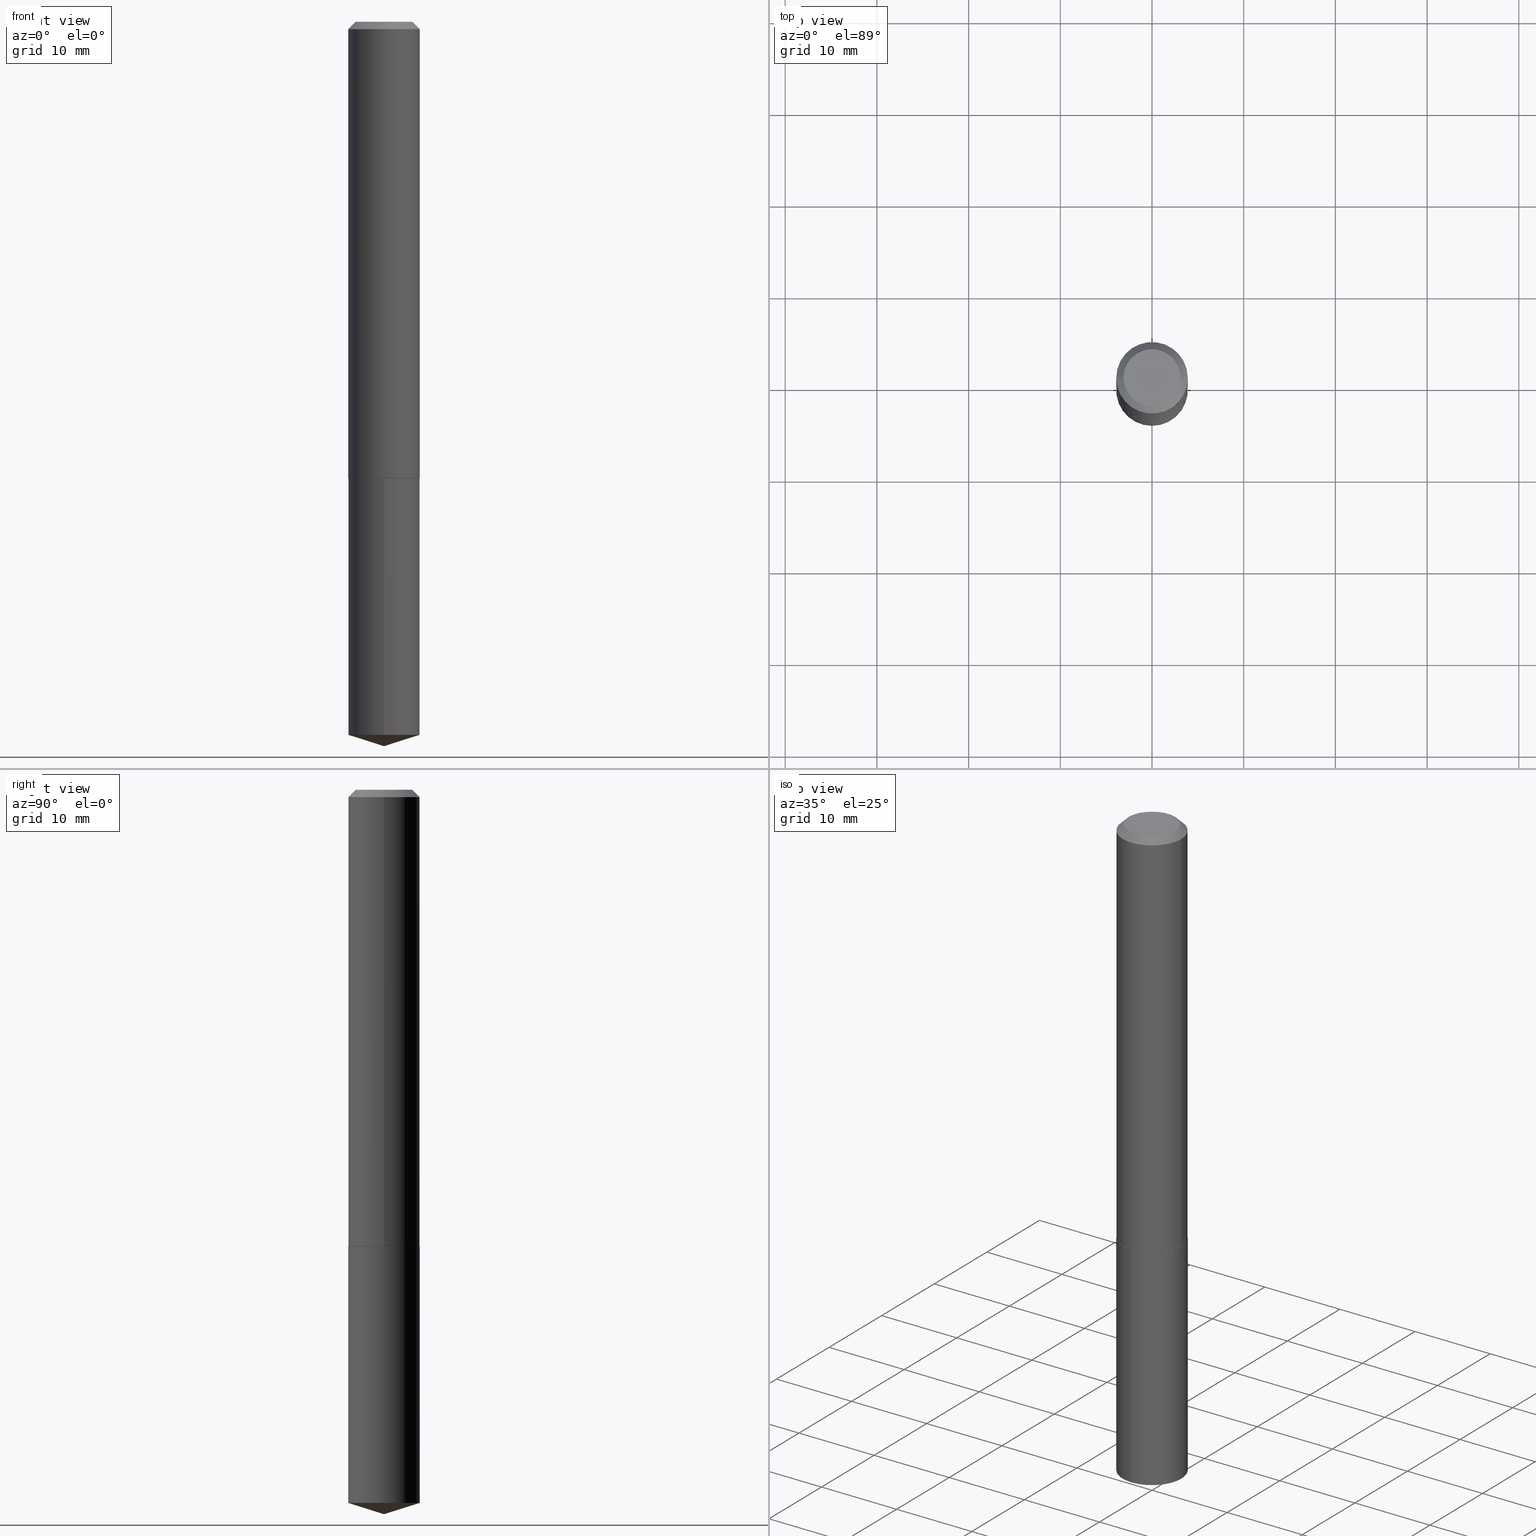
[diagram: canonical four-view strip — front | top / right | iso, engineering-drawing reading convention]
A machine part, canonical four-view strip (front | top / right | iso — engineering-drawing reading convention). The complete STEP part file that produces these views, byte-faithful:
ISO-10303-21;
HEADER;
FILE_DESCRIPTION (( 'STEP AP203' ),
    '1' );
FILE_NAME ('62146.STEP',
    '2024-04-23T06:43:20',
    ( '' ),
    ( '' ),
    'SwSTEP 2.0',
    'SolidWorks 2023',
    '' );
FILE_SCHEMA (( 'CONFIG_CONTROL_DESIGN' ));
ENDSEC;

DATA;
#1 = AXIS2_PLACEMENT_3D ( 'NONE', #253, #371, #138 ) ;
#2 = DIRECTION ( 'NONE',  ( -2.445468806185136597E-29, 3.491481338843145583E-15, 1.000000000000000000 ) ) ;
#3 = DIRECTION ( 'NONE',  ( -2.445604235534817824E-29, 3.491287396306242088E-15, 1.000000000000000000 ) ) ;
#4 = EDGE_CURVE ( 'NONE', #285, #129, #298, .T. ) ;
#5 = CARTESIAN_POINT ( 'NONE',  ( 7.487650971556116702E-29, -1.068995466523567618E-14, -3.061785870967631773 ) ) ;
#6 = VECTOR ( 'NONE', #382, 39.37007874015748143 ) ;
#7 = AXIS2_PLACEMENT_3D ( 'NONE', #148, #147, #380 ) ;
#8 = CARTESIAN_POINT ( 'NONE',  ( -0.1535500000000002419, -5.752614201506813710E-15, -1.960099999999999953 ) ) ;
#9 = VERTEX_POINT ( 'NONE', #154 ) ;
#10 = CARTESIAN_POINT ( 'NONE',  ( 4.793363407003486357E-29, -6.843652572266448870E-15, -1.960099999999999953 ) ) ;
#11 = ADVANCED_FACE ( 'NONE', ( #241 ), #142, .T. ) ;
#12 = EDGE_LOOP ( 'NONE', ( #224, #178, #44 ) ) ;
#13 = APPROVAL ( #97, 'UNSPECIFIED' ) ;
#14 = CLOSED_SHELL ( 'NONE', ( #11, #87, #180, #80, #182, #266, #117, #279 ) ) ;
#15 = DIRECTION ( 'NONE',  ( 2.445604235534817544E-29, -3.491287396306242088E-15, -1.000000000000000000 ) ) ;
#16 = APPROVAL_PERSON_ORGANIZATION ( #381, #19, #128 ) ;
#17 = DIRECTION ( 'NONE',  ( -2.445468806185136597E-29, 3.491481338843145583E-15, 1.000000000000000000 ) ) ;
#18 = VECTOR ( 'NONE', #70, 39.37007874015748143 ) ;
#19 = APPROVAL ( #28, 'UNSPECIFIED' ) ;
#20 = CARTESIAN_POINT ( 'NONE',  ( 4.794586141406578598E-29, -6.845398312935870373E-15, -1.960599999999999898 ) ) ;
#21 = ORIENTED_EDGE ( 'NONE', *, *, #383, .T. ) ;
#22 = ADVANCED_FACE ( 'NONE', ( #60 ), #323, .T. ) ;
#23 = DIRECTION ( 'NONE',  ( -6.982962677686266711E-15, -1.000000000000000000, 3.558252026915354491E-15 ) ) ;
#24 = AXIS2_PLACEMENT_3D ( 'NONE', #169, #37, #134 ) ;
#25 = DIRECTION ( 'NONE',  ( -2.438088387897960049E-29, 3.491481338843145188E-15, 1.000000000000000000 ) ) ;
#26 = AXIS2_PLACEMENT_3D ( 'NONE', #217, #25, #215 ) ;
#27 = ORIENTED_EDGE ( 'NONE', *, *, #193, .T. ) ;
#28 = APPROVAL_STATUS ( 'not_yet_approved' ) ;
#29 = VERTEX_POINT ( 'NONE', #272 ) ;
#30 = CALENDAR_DATE ( 2024, 23, 4 ) ;
#31 = CC_DESIGN_PERSON_AND_ORGANIZATION_ASSIGNMENT ( #56, #329, ( #365 ) ) ;
#32 = DIRECTION ( 'NONE',  ( -1.000000000000000000, 6.982962677686266711E-15, 0.000000000000000000 ) ) ;
#33 = DIRECTION ( 'NONE',  ( -2.445604235534817824E-29, 3.491287396306242088E-15, 1.000000000000000000 ) ) ;
#34 = APPROVAL_PERSON_ORGANIZATION ( #122, #13, #301 ) ;
#35 = DIRECTION ( 'NONE',  ( 6.776566513254247093E-15, 0.9537169507482274877, 0.3007057995042716203 ) ) ;
#36 = DIRECTION ( 'NONE',  ( -1.000000000000000000, 6.982962677686265922E-15, -4.876176775795935793E-29 ) ) ;
#37 = DIRECTION ( 'NONE',  ( -2.445468806185136597E-29, 3.491481338843145583E-15, 1.000000000000000000 ) ) ;
#38 = EDGE_LOOP ( 'NONE', ( #238, #143, #183, #167 ) ) ;
#39 = AXIS2_PLACEMENT_3D ( 'NONE', #234, #15, #290 ) ;
#40 = FACE_OUTER_BOUND ( 'NONE', #137, .T. ) ;
#41 = AXIS2_PLACEMENT_3D ( 'NONE', #109, #2, #225 ) ;
#42 = PERSON_AND_ORGANIZATION ( #78, #328 ) ;
#43 = CC_DESIGN_DATE_AND_TIME_ASSIGNMENT ( #356, #319, ( #73 ) ) ;
#44 = ORIENTED_EDGE ( 'NONE', *, *, #102, .F. ) ;
#45 = DIRECTION ( 'NONE',  ( -6.982962677686265922E-15, -1.000000000000000000, 3.500519750498761230E-15 ) ) ;
#46 = AXIS2_PLACEMENT_3D ( 'NONE', #94, #390, #98 ) ;
#47 = CARTESIAN_POINT ( 'NONE',  ( 7.606318293360390624E-29, -1.085860205999167574E-14, -3.110199999999999854 ) ) ;
#48 = UNCERTAINTY_MEASURE_WITH_UNIT (LENGTH_MEASURE( 1.000000000000000082E-05 ), #207, 'distance_accuracy_value', 'NONE');
#49 =( NAMED_UNIT ( * ) PLANE_ANGLE_UNIT ( ) SI_UNIT ( $, .RADIAN. ) );
#50 = ORIENTED_EDGE ( 'NONE', *, *, #315, .F. ) ;
#51 = PERSON_AND_ORGANIZATION_ROLE ( 'classification_officer' ) ;
#52 = EDGE_CURVE ( 'NONE', #135, #187, #246, .T. ) ;
#53 = ORIENTED_EDGE ( 'NONE', *, *, #289, .T. ) ;
#54 = APPROVAL_PERSON_ORGANIZATION ( #171, #291, #260 ) ;
#55 = APPLICATION_CONTEXT ( 'configuration controlled 3d designs of mechanical parts and assemblies' ) ;
#56 = PERSON_AND_ORGANIZATION ( #78, #328 ) ;
#57 = ORIENTED_EDGE ( 'NONE', *, *, #372, .F. ) ;
#58 = DIRECTION ( 'NONE',  ( -6.982962677686266711E-15, -1.000000000000000000, 3.558252026915354491E-15 ) ) ;
#59 = VECTOR ( 'NONE', #133, 39.37007874015748143 ) ;
#60 = FACE_OUTER_BOUND ( 'NONE', #231, .T. ) ;
#61 = CIRCLE ( 'NONE', #343, 0.1535499999999999921 ) ;
#62 = DIRECTION ( 'NONE',  ( 1.000000000000000000, -6.982962677686270655E-15, 0.000000000000000000 ) ) ;
#63 = EDGE_LOOP ( 'NONE', ( #170, #310, #341, #373 ) ) ;
#64 = DIRECTION ( 'NONE',  ( 1.000000000000000000, -6.982962677686270655E-15, 0.000000000000000000 ) ) ;
#65 = ADVANCED_FACE ( 'NONE', ( #248 ), #359, .T. ) ;
#66 =( GEOMETRIC_REPRESENTATION_CONTEXT ( 3 ) GLOBAL_UNCERTAINTY_ASSIGNED_CONTEXT ( ( #48 ) ) GLOBAL_UNIT_ASSIGNED_CONTEXT ( ( #207, #49, #176 ) ) REPRESENTATION_CONTEXT ( 'NONE', 'WORKASPACE' ) );
#67 = DIRECTION ( 'NONE',  ( 1.000000000000000000, -6.982962677686270655E-15, 0.000000000000000000 ) ) ;
#68 = DIRECTION ( 'NONE',  ( -2.445468806185136597E-29, 3.491481338843145583E-15, 1.000000000000000000 ) ) ;
#69 = ORIENTED_EDGE ( 'NONE', *, *, #104, .F. ) ;
#70 = DIRECTION ( 'NONE',  ( -0.7071067811864871766, 7.493145998870136435E-15, 0.7071067811866078578 ) ) ;
#71 = ORIENTED_EDGE ( 'NONE', *, *, #159, .F. ) ;
#72 = MANIFOLD_SOLID_BREP ( 'Body-Move/Copy2[2]', #14 ) ;
#73 = PRODUCT_DEFINITION ( 'UNKNOWN', '', #365, #368 ) ;
#74 = CIRCLE ( 'NONE', #312, 0.1222999999999999782 ) ;
#75 = DIRECTION ( 'NONE',  ( -1.000000000000000000, 6.982962677686266711E-15, 0.000000000000000000 ) ) ;
#76 = EDGE_LOOP ( 'NONE', ( #316, #296, #111 ) ) ;
#77 = ORIENTED_EDGE ( 'NONE', *, *, #199, .F. ) ;
#78 = PERSON ( 'UNSPECIFIED', 'UNSPECIFIED', 'UNSPECIFIED', ('UNSPECIFIED'), ('UNSPECIFIED'), ('UNSPECIFIED') ) ;
#79 = CARTESIAN_POINT ( 'NONE',  ( -0.1530500000000004357, -5.755263428680924122E-15, -1.960599999999999898 ) ) ;
#80 = ADVANCED_FACE ( 'NONE', ( #331 ), #387, .F. ) ;
#81 = EDGE_CURVE ( 'NONE', #187, #345, #270, .T. ) ;
#82 = AXIS2_PLACEMENT_3D ( 'NONE', #126, #325, #58 ) ;
#83 = AXIS2_PLACEMENT_3D ( 'NONE', #256, #369, #64 ) ;
#84 = DIRECTION ( 'NONE',  ( 1.000000000000000000, -6.982962677686266711E-15, 4.876172253785905870E-29 ) ) ;
#85 = VECTOR ( 'NONE', #350, 39.37007874015748143 ) ;
#86 = CARTESIAN_POINT ( 'NONE',  ( -0.1535500000000002419, -5.752614201506813710E-15, -1.960099999999999953 ) ) ;
#87 = ADVANCED_FACE ( 'NONE', ( #357 ), #188, .T. ) ;
#88 = ORIENTED_EDGE ( 'NONE', *, *, #326, .F. ) ;
#89 = MANIFOLD_SOLID_BREP ( 'Body-Move/Copy2[1]', #219 ) ;
#90 = CC_DESIGN_DATE_AND_TIME_ASSIGNMENT ( #247, #275, ( #235 ) ) ;
#91 = CALENDAR_DATE ( 2024, 23, 4 ) ;
#92 = CARTESIAN_POINT ( 'NONE',  ( 0.1535500000000002419, -7.915886491425178171E-15, -1.960099999999999953 ) ) ;
#93 = LOCAL_TIME ( 2, 43, 20.00000000000000000, #179 ) ;
#94 = CARTESIAN_POINT ( 'NONE',  ( 4.794586141406578598E-29, -6.845398312935870373E-15, -1.960599999999999898 ) ) ;
#95 = PERSON_AND_ORGANIZATION ( #78, #328 ) ;
#96 = CARTESIAN_POINT ( 'NONE',  ( 7.642090019328603538E-31, -1.091087918388490390E-16, -0.03125000000000021511 ) ) ;
#97 = APPROVAL_STATUS ( 'not_yet_approved' ) ;
#98 = DIRECTION ( 'NONE',  ( -6.982962677686266711E-15, -1.000000000000000000, 3.558252026915354491E-15 ) ) ;
#99 = AXIS2_PLACEMENT_3D ( 'NONE', #307, #103, #105 ) ;
#100 = DIRECTION ( 'NONE',  ( 1.000000000000000000, -6.982962677686266711E-15, 4.876176775795935793E-29 ) ) ;
#101 = EDGE_CURVE ( 'NONE', #152, #258, #174, .T. ) ;
#102 = EDGE_CURVE ( 'NONE', #29, #351, #364, .T. ) ;
#103 = DIRECTION ( 'NONE',  ( -2.445468806185136597E-29, 3.491481338843145583E-15, 1.000000000000000000 ) ) ;
#104 = EDGE_CURVE ( 'NONE', #187, #129, #150, .T. ) ;
#105 = DIRECTION ( 'NONE',  ( 1.000000000000000000, -6.982962677686266711E-15, 0.000000000000000000 ) ) ;
#106 = AXIS2_PLACEMENT_3D ( 'NONE', #20, #17, #265 ) ;
#107 = CARTESIAN_POINT ( 'NONE',  ( 7.642090019328603538E-31, -1.091087918388490390E-16, -0.03125000000000021511 ) ) ;
#108 = ORIENTED_EDGE ( 'NONE', *, *, #52, .T. ) ;
#109 = CARTESIAN_POINT ( 'NONE',  ( 4.794586141406578598E-29, -6.845398312935870373E-15, -1.960599999999999898 ) ) ;
#110 = CC_DESIGN_PERSON_AND_ORGANIZATION_ASSIGNMENT ( #95, #242, ( #365 ) ) ;
#111 = ORIENTED_EDGE ( 'NONE', *, *, #262, .F. ) ;
#112 = FACE_OUTER_BOUND ( 'NONE', #116, .T. ) ;
#113 = ORIENTED_EDGE ( 'NONE', *, *, #211, .T. ) ;
#114 = CC_DESIGN_APPROVAL ( #19, ( #365 ) ) ;
#115 = CALENDAR_DATE ( 2024, 23, 4 ) ;
#116 = EDGE_LOOP ( 'NONE', ( #367, #27, #227, #160 ) ) ;
#117 = ADVANCED_FACE ( 'NONE', ( #327 ), #282, .T. ) ;
#118 = DIRECTION ( 'NONE',  ( -2.445468806185136597E-29, 3.491481338843145583E-15, 1.000000000000000000 ) ) ;
#119 = AXIS2_PLACEMENT_3D ( 'NONE', #334, #309, #75 ) ;
#120 = CARTESIAN_POINT ( 'NONE',  ( 1.091038370759681505E-15, 0.1535499999999931364, -1.960600000000000342 ) ) ;
#121 = CONICAL_SURFACE ( 'NONE', #386, 0.1535500000000002419, 0.7853981633973630139 ) ;
#122 = PERSON_AND_ORGANIZATION ( #78, #328 ) ;
#123 = ORIENTED_EDGE ( 'NONE', *, *, #315, .T. ) ;
#124 = VECTOR ( 'NONE', #355, 39.37007874015748143 ) ;
#125 = DIRECTION ( 'NONE',  ( -6.982962677686266711E-15, -1.000000000000000000, 3.558252026915354491E-15 ) ) ;
#126 = CARTESIAN_POINT ( 'NONE',  ( 7.487650971556116702E-29, -1.068995466523567618E-14, -3.061785870967631773 ) ) ;
#127 = ADVANCED_BREP_SHAPE_REPRESENTATION ( '62146', ( #89, #72, #7 ), #66 ) ;
#128 = APPROVAL_ROLE ( '' ) ;
#129 = VERTEX_POINT ( 'NONE', #339 ) ;
#130 = ORIENTED_EDGE ( 'NONE', *, *, #81, .F. ) ;
#131 = LOCAL_TIME ( 2, 43, 20.00000000000000000, #297 ) ;
#132 = CARTESIAN_POINT ( 'NONE',  ( 0.1535500000000002419, -7.915886491425178171E-15, -1.960099999999999953 ) ) ;
#133 = DIRECTION ( 'NONE',  ( -0.7071067811865452413, 2.468850131082233000E-15, -0.7071067811865497932 ) ) ;
#134 = DIRECTION ( 'NONE',  ( 1.000000000000000000, -6.982962677686270655E-15, 0.000000000000000000 ) ) ;
#135 = VERTEX_POINT ( 'NONE', #162 ) ;
#136 = LINE ( 'NONE', #278, #165 ) ;
#137 = EDGE_LOOP ( 'NONE', ( #203, #113, #130, #195 ) ) ;
#138 = DIRECTION ( 'NONE',  ( -6.982962677686265922E-15, -1.000000000000000000, 3.500519750498761230E-15 ) ) ;
#139 = VECTOR ( 'NONE', #33, 39.37007874015748143 ) ;
#140 = ORIENTED_EDGE ( 'NONE', *, *, #326, .T. ) ;
#141 = APPROVAL_STATUS ( 'not_yet_approved' ) ;
#142 = CONICAL_SURFACE ( 'NONE', #288, 0.1535499999999999921, 0.7853981633974450594 ) ;
#143 = ORIENTED_EDGE ( 'NONE', *, *, #289, .F. ) ;
#144 = CARTESIAN_POINT ( 'NONE',  ( -0.1535500000000001308, 1.091038370759634765E-15, -7.553024831086413478E-30 ) ) ;
#145 = CC_DESIGN_PERSON_AND_ORGANIZATION_ASSIGNMENT ( #295, #156, ( #73 ) ) ;
#146 = DIRECTION ( 'NONE',  ( -2.445604235534817824E-29, 3.491287396306242088E-15, 1.000000000000000000 ) ) ;
#147 = DIRECTION ( 'NONE',  ( 0.000000000000000000, 0.000000000000000000, 1.000000000000000000 ) ) ;
#148 = CARTESIAN_POINT ( 'NONE',  ( 0.000000000000000000, 0.000000000000000000, 0.000000000000000000 ) ) ;
#149 = CIRCLE ( 'NONE', #24, 0.1535500000000002419 ) ;
#150 = LINE ( 'NONE', #267, #6 ) ;
#151 = DATE_AND_TIME ( #30, #349 ) ;
#152 = VERTEX_POINT ( 'NONE', #338 ) ;
#153 = AXIS2_PLACEMENT_3D ( 'NONE', #181, #189, #125 ) ;
#154 = CARTESIAN_POINT ( 'NONE',  ( -0.1535499999999999921, -2.385342311293013826E-15, -0.03125000000000021511 ) ) ;
#155 = CC_DESIGN_PERSON_AND_ORGANIZATION_ASSIGNMENT ( #358, #51, ( #235 ) ) ;
#156 = PERSON_AND_ORGANIZATION_ROLE ( 'creator' ) ;
#157 = DIMENSIONAL_EXPONENTS ( 1.000000000000000000, 0.000000000000000000, 0.000000000000000000, 0.000000000000000000, 0.000000000000000000, 0.000000000000000000, 0.000000000000000000 ) ;
#158 = DIRECTION ( 'NONE',  ( -2.445604235534817824E-29, 3.491287396306242088E-15, 1.000000000000000000 ) ) ;
#159 = EDGE_CURVE ( 'NONE', #201, #9, #218, .T. ) ;
#160 = ORIENTED_EDGE ( 'NONE', *, *, #239, .F. ) ;
#161 = CARTESIAN_POINT ( 'NONE',  ( -0.1535499999999999921, 9.631251273198770455E-16, -0.03125000000000021511 ) ) ;
#162 = CARTESIAN_POINT ( 'NONE',  ( 0.1530500000000004357, -7.914140750755755879E-15, -1.960599999999999898 ) ) ;
#163 = CIRCLE ( 'NONE', #245, 0.1535499999999999921 ) ;
#164 = LINE ( 'NONE', #196, #233 ) ;
#165 = VECTOR ( 'NONE', #311, 39.37007874015748143 ) ;
#166 = LINE ( 'NONE', #366, #139 ) ;
#167 = ORIENTED_EDGE ( 'NONE', *, *, #239, .T. ) ;
#168 = CC_DESIGN_APPROVAL ( #13, ( #235 ) ) ;
#169 = CARTESIAN_POINT ( 'NONE',  ( 4.793363407003486357E-29, -6.843652572266448870E-15, -1.960099999999999953 ) ) ;
#170 = ORIENTED_EDGE ( 'NONE', *, *, #262, .T. ) ;
#171 = PERSON_AND_ORGANIZATION ( #78, #328 ) ;
#172 = EDGE_CURVE ( 'NONE', #293, #351, #136, .T. ) ;
#173 = EDGE_LOOP ( 'NONE', ( #50, #304, #269, #71 ) ) ;
#174 = CIRCLE ( 'NONE', #153, 0.1535499999999999921 ) ;
#175 = FACE_OUTER_BOUND ( 'NONE', #255, .T. ) ;
#176 =( NAMED_UNIT ( * ) SI_UNIT ( $, .STERADIAN. ) SOLID_ANGLE_UNIT ( ) );
#177 = ORIENTED_EDGE ( 'NONE', *, *, #101, .T. ) ;
#178 = ORIENTED_EDGE ( 'NONE', *, *, #172, .T. ) ;
#179 = COORDINATED_UNIVERSAL_TIME_OFFSET ( 5, 0, .BEHIND. ) ;
#180 = ADVANCED_FACE ( 'NONE', ( #40 ), #294, .T. ) ;
#181 = CARTESIAN_POINT ( 'NONE',  ( 4.794586141406578598E-29, -6.845398312935870373E-15, -1.960599999999999898 ) ) ;
#182 = ADVANCED_FACE ( 'NONE', ( #190 ), #121, .T. ) ;
#183 = ORIENTED_EDGE ( 'NONE', *, *, #159, .T. ) ;
#184 = EDGE_CURVE ( 'NONE', #135, #344, #191, .T. ) ;
#185 = AXIS2_PLACEMENT_3D ( 'NONE', #250, #361, #100 ) ;
#186 = CIRCLE ( 'NONE', #106, 0.1530500000000004357 ) ;
#187 = VERTEX_POINT ( 'NONE', #132 ) ;
#188 = CYLINDRICAL_SURFACE ( 'NONE', #185, 0.1535500000000001308 ) ;
#189 = DIRECTION ( 'NONE',  ( -2.445604235534817824E-29, 3.491287396306242088E-15, 1.000000000000000000 ) ) ;
#190 = FACE_OUTER_BOUND ( 'NONE', #261, .T. ) ;
#191 = CIRCLE ( 'NONE', #41, 0.1530500000000004357 ) ;
#192 = CARTESIAN_POINT ( 'NONE',  ( -8.834764860432444336E-48, 1.261370276539597297E-33, 3.612708057484663450E-19 ) ) ;
#193 = EDGE_CURVE ( 'NONE', #345, #187, #149, .T. ) ;
#194 = DIRECTION ( 'NONE',  ( -2.445468806185136597E-29, 3.491481338843145583E-15, 1.000000000000000000 ) ) ;
#195 = ORIENTED_EDGE ( 'NONE', *, *, #52, .F. ) ;
#196 = CARTESIAN_POINT ( 'NONE',  ( 7.606322950003155272E-29, -1.085860205999167574E-14, -3.110199999999999854 ) ) ;
#197 = ORIENTED_EDGE ( 'NONE', *, *, #101, .F. ) ;
#198 = AXIS2_PLACEMENT_3D ( 'NONE', #223, #68, #287 ) ;
#199 = EDGE_CURVE ( 'NONE', #129, #9, #163, .T. ) ;
#200 = MECHANICAL_CONTEXT ( 'NONE', #330, 'mechanical' ) ;
#201 = VERTEX_POINT ( 'NONE', #306 ) ;
#202 = DIRECTION ( 'NONE',  ( -2.445604235534817824E-29, 3.491287396306242088E-15, 1.000000000000000000 ) ) ;
#203 = ORIENTED_EDGE ( 'NONE', *, *, #184, .T. ) ;
#204 = APPLICATION_PROTOCOL_DEFINITION ( 'international standard', 'config_control_design', 1994, #55 ) ;
#205 = AXIS2_PLACEMENT_3D ( 'NONE', #5, #3, #257 ) ;
#206 = CC_DESIGN_PERSON_AND_ORGANIZATION_ASSIGNMENT ( #42, #232, ( #208 ) ) ;
#207 =( CONVERSION_BASED_UNIT ( 'INCH', #236 ) LENGTH_UNIT ( ) NAMED_UNIT ( #157 ) );
#208 = PRODUCT ( '62146', '62146', '', ( #200 ) ) ;
#209 = CALENDAR_DATE ( 2024, 23, 4 ) ;
#210 = CC_DESIGN_APPROVAL ( #291, ( #73 ) ) ;
#211 = EDGE_CURVE ( 'NONE', #344, #345, #283, .T. ) ;
#212 = CARTESIAN_POINT ( 'NONE',  ( 4.793363407003486357E-29, -6.843652572266448870E-15, -1.960099999999999953 ) ) ;
#213 = COORDINATED_UNIVERSAL_TIME_OFFSET ( 5, 0, .BEHIND. ) ;
#214 = EDGE_LOOP ( 'NONE', ( #370, #88 ) ) ;
#215 = DIRECTION ( 'NONE',  ( 1.000000000000000000, -6.982962677686265922E-15, 4.876176775795935793E-29 ) ) ;
#216 = ORIENTED_EDGE ( 'NONE', *, *, #81, .T. ) ;
#217 = CARTESIAN_POINT ( 'NONE',  ( 4.794586141406578598E-29, -6.845398312935870373E-15, -1.960599999999999898 ) ) ;
#218 = LINE ( 'NONE', #161, #59 ) ;
#219 = CLOSED_SHELL ( 'NONE', ( #65, #354, #252, #22, #305 ) ) ;
#220 = EDGE_CURVE ( 'NONE', #351, #258, #166, .T. ) ;
#221 = DIRECTION ( 'NONE',  ( 1.000000000000000000, -6.982962677686266711E-15, 4.876176775795935793E-29 ) ) ;
#222 = CONICAL_SURFACE ( 'NONE', #1, 124.8659371009130439, 1.265363707695887019 ) ;
#223 = CARTESIAN_POINT ( 'NONE',  ( -1.766952972086488867E-47, 2.522740553079194594E-33, 7.225416114969326901E-19 ) ) ;
#224 = ORIENTED_EDGE ( 'NONE', *, *, #229, .F. ) ;
#225 = DIRECTION ( 'NONE',  ( 1.000000000000000000, -6.982962677686265133E-15, 0.000000000000000000 ) ) ;
#226 = CYLINDRICAL_SURFACE ( 'NONE', #228, 0.1535500000000001308 ) ;
#227 = ORIENTED_EDGE ( 'NONE', *, *, #104, .T. ) ;
#228 = AXIS2_PLACEMENT_3D ( 'NONE', #342, #363, #221 ) ;
#229 = EDGE_CURVE ( 'NONE', #293, #29, #164, .T. ) ;
#230 = APPLICATION_PROTOCOL_DEFINITION ( 'international standard', 'config_control_design', 1994, #330 ) ;
#231 = EDGE_LOOP ( 'NONE', ( #57, #320, #303, #197 ) ) ;
#232 = PERSON_AND_ORGANIZATION_ROLE ( 'design_owner' ) ;
#233 = VECTOR ( 'NONE', #35, 39.37007874015748854 ) ;
#234 = CARTESIAN_POINT ( 'NONE',  ( 4.794586141406578598E-29, -6.845398312935870373E-15, -1.960599999999999898 ) ) ;
#235 = SECURITY_CLASSIFICATION ( '', '', #324 ) ;
#236 = LENGTH_MEASURE_WITH_UNIT ( LENGTH_MEASURE( 0.02539999999999999897 ), #263 );
#237 = FACE_OUTER_BOUND ( 'NONE', #76, .T. ) ;
#238 = ORIENTED_EDGE ( 'NONE', *, *, #4, .F. ) ;
#239 = EDGE_CURVE ( 'NONE', #9, #129, #360, .T. ) ;
#240 = DATE_AND_TIME ( #91, #131 ) ;
#241 = FACE_OUTER_BOUND ( 'NONE', #173, .T. ) ;
#242 = PERSON_AND_ORGANIZATION_ROLE ( 'creator' ) ;
#243 = CONICAL_SURFACE ( 'NONE', #284, 124.8659371009130439, 1.265363707695887019 ) ;
#244 = ORIENTED_EDGE ( 'NONE', *, *, #211, .F. ) ;
#245 = AXIS2_PLACEMENT_3D ( 'NONE', #107, #251, #362 ) ;
#246 = LINE ( 'NONE', #92, #124 ) ;
#247 = DATE_AND_TIME ( #273, #93 ) ;
#248 = FACE_OUTER_BOUND ( 'NONE', #63, .T. ) ;
#249 = APPROVAL_DATE_TIME ( #352, #291 ) ;
#250 = CARTESIAN_POINT ( 'NONE',  ( 0.000000000000000000, 0.000000000000000000, 0.000000000000000000 ) ) ;
#251 = DIRECTION ( 'NONE',  ( -2.445468806185136597E-29, 3.491481338843145583E-15, 1.000000000000000000 ) ) ;
#252 = ADVANCED_FACE ( 'NONE', ( #286 ), #222, .T. ) ;
#253 = CARTESIAN_POINT ( 'NONE',  ( -8.867757854969101130E-28, 1.265932773933666170E-13, 36.25987874015748247 ) ) ;
#254 = FACE_OUTER_BOUND ( 'NONE', #376, .T. ) ;
#255 = EDGE_LOOP ( 'NONE', ( #21, #177 ) ) ;
#256 = CARTESIAN_POINT ( 'NONE',  ( 4.793363407003486357E-29, -6.843652572266448870E-15, -1.960099999999999953 ) ) ;
#257 = DIRECTION ( 'NONE',  ( -6.982962677686266711E-15, -1.000000000000000000, 3.558252026915354491E-15 ) ) ;
#258 = VERTEX_POINT ( 'NONE', #280 ) ;
#259 = VECTOR ( 'NONE', #274, 39.37007874015748143 ) ;
#260 = APPROVAL_ROLE ( '' ) ;
#261 = EDGE_LOOP ( 'NONE', ( #244, #140, #108, #333 ) ) ;
#262 = EDGE_CURVE ( 'NONE', #351, #29, #336, .T. ) ;
#263 =( LENGTH_UNIT ( ) NAMED_UNIT ( * ) SI_UNIT ( $, .METRE. ) );
#264 = PLANE ( 'NONE',  #39 ) ;
#265 = DIRECTION ( 'NONE',  ( 1.000000000000000000, -6.982962677686265133E-15, 0.000000000000000000 ) ) ;
#266 = ADVANCED_FACE ( 'NONE', ( #112 ), #226, .T. ) ;
#267 = CARTESIAN_POINT ( 'NONE',  ( 0.1535500000000001308, -1.072233919158727132E-15, 7.487369439234666187E-30 ) ) ;
#268 = SHAPE_DEFINITION_REPRESENTATION ( #340, #127 ) ;
#269 = ORIENTED_EDGE ( 'NONE', *, *, #199, .T. ) ;
#270 = CIRCLE ( 'NONE', #347, 0.1535500000000002419 ) ;
#271 = APPROVAL_DATE_TIME ( #240, #13 ) ;
#272 = CARTESIAN_POINT ( 'NONE',  ( 1.091038370759708721E-15, 0.1535499999999893339, -3.061785870967632217 ) ) ;
#273 = CALENDAR_DATE ( 2024, 23, 4 ) ;
#274 = DIRECTION ( 'NONE',  ( 0.7071067811865452413, -7.319954787623248157E-15, -0.7071067811865497932 ) ) ;
#275 = DATE_TIME_ROLE ( 'classification_date' ) ;
#276 = CARTESIAN_POINT ( 'NONE',  ( 0.1535499999999999921, -1.162538259396667614E-15, -0.03125000000000021511 ) ) ;
#277 = VECTOR ( 'NONE', #318, 39.37007874015748143 ) ;
#278 = CARTESIAN_POINT ( 'NONE',  ( 7.605787247794420913E-29, -1.085936254746738114E-14, -3.110199999999999854 ) ) ;
#279 = ADVANCED_FACE ( 'NONE', ( #254 ), #337, .F. ) ;
#280 = CARTESIAN_POINT ( 'NONE',  ( -1.072233919158678223E-15, -0.1535500000000068477, -1.960599999999999232 ) ) ;
#281 = CARTESIAN_POINT ( 'NONE',  ( 0.1222999999999999782, -1.000788582262062883E-15, 7.225416115034177777E-19 ) ) ;
#282 = CONICAL_SURFACE ( 'NONE', #119, 0.1535499999999999921, 0.7853981633974450594 ) ;
#283 = LINE ( 'NONE', #8, #18 ) ;
#284 = AXIS2_PLACEMENT_3D ( 'NONE', #314, #202, #45 ) ;
#285 = VERTEX_POINT ( 'NONE', #281 ) ;
#286 = FACE_OUTER_BOUND ( 'NONE', #12, .T. ) ;
#287 = DIRECTION ( 'NONE',  ( 1.000000000000000000, -6.982962677686266711E-15, 4.876172253785905870E-29 ) ) ;
#288 = AXIS2_PLACEMENT_3D ( 'NONE', #96, #389, #32 ) ;
#289 = EDGE_CURVE ( 'NONE', #201, #285, #375, .T. ) ;
#290 = DIRECTION ( 'NONE',  ( 6.982962677686265922E-15, 1.000000000000000000, -3.491287396306242088E-15 ) ) ;
#291 = APPROVAL ( #141, 'UNSPECIFIED' ) ;
#292 = DIRECTION ( 'NONE',  ( -6.982962677686266711E-15, -1.000000000000000000, 3.558252026915354491E-15 ) ) ;
#293 = VERTEX_POINT ( 'NONE', #47 ) ;
#294 = CONICAL_SURFACE ( 'NONE', #83, 0.1535500000000002419, 0.7853981633973630139 ) ;
#295 = PERSON_AND_ORGANIZATION ( #78, #328 ) ;
#296 = ORIENTED_EDGE ( 'NONE', *, *, #229, .T. ) ;
#297 = COORDINATED_UNIVERSAL_TIME_OFFSET ( 5, 0, .BEHIND. ) ;
#298 = LINE ( 'NONE', #276, #259 ) ;
#299 = EDGE_LOOP ( 'NONE', ( #216, #313, #77, #69 ) ) ;
#300 = PRODUCT_RELATED_PRODUCT_CATEGORY ( 'detail', '', ( #208 ) ) ;
#301 = APPROVAL_ROLE ( '' ) ;
#302 = LOCAL_TIME ( 2, 43, 20.00000000000000000, #374 ) ;
#303 = ORIENTED_EDGE ( 'NONE', *, *, #220, .T. ) ;
#304 = ORIENTED_EDGE ( 'NONE', *, *, #4, .T. ) ;
#305 = ADVANCED_FACE ( 'NONE', ( #175 ), #264, .F. ) ;
#306 = CARTESIAN_POINT ( 'NONE',  ( -0.1222999999999999782, 9.085707314004538757E-16, 7.225416114907696180E-19 ) ) ;
#307 = CARTESIAN_POINT ( 'NONE',  ( 7.642090019328603538E-31, -1.091087918388490390E-16, -0.03125000000000021511 ) ) ;
#308 = DIRECTION ( 'NONE',  ( 2.438088387897960049E-29, -3.491481338843145188E-15, -1.000000000000000000 ) ) ;
#309 = DIRECTION ( 'NONE',  ( 2.445468806185136597E-29, -3.491481338843145583E-15, -1.000000000000000000 ) ) ;
#310 = ORIENTED_EDGE ( 'NONE', *, *, #372, .T. ) ;
#311 = DIRECTION ( 'NONE',  ( -6.659769872151621833E-15, -0.9537169507482252673, 0.3007057995042782816 ) ) ;
#312 = AXIS2_PLACEMENT_3D ( 'NONE', #317, #118, #84 ) ;
#313 = ORIENTED_EDGE ( 'NONE', *, *, #332, .T. ) ;
#314 = CARTESIAN_POINT ( 'NONE',  ( -8.867757854969101130E-28, 1.265932773933666170E-13, 36.25987874015748247 ) ) ;
#315 = EDGE_CURVE ( 'NONE', #285, #201, #74, .T. ) ;
#316 = ORIENTED_EDGE ( 'NONE', *, *, #172, .F. ) ;
#317 = CARTESIAN_POINT ( 'NONE',  ( -1.766952972086488867E-47, 2.522740553079194594E-33, 7.225416114969326901E-19 ) ) ;
#318 = DIRECTION ( 'NONE',  ( -2.445604235534817824E-29, 3.491287396306242088E-15, 1.000000000000000000 ) ) ;
#319 = DATE_TIME_ROLE ( 'creation_date' ) ;
#320 = ORIENTED_EDGE ( 'NONE', *, *, #102, .T. ) ;
#321 = CC_DESIGN_SECURITY_CLASSIFICATION ( #235, ( #365 ) ) ;
#322 = APPROVAL_DATE_TIME ( #151, #19 ) ;
#323 = CYLINDRICAL_SURFACE ( 'NONE', #335, 0.1535499999999999921 ) ;
#324 = SECURITY_CLASSIFICATION_LEVEL ( 'unclassified' ) ;
#325 = DIRECTION ( 'NONE',  ( -2.445604235534817824E-29, 3.491287396306242088E-15, 1.000000000000000000 ) ) ;
#326 = EDGE_CURVE ( 'NONE', #344, #135, #186, .T. ) ;
#327 = FACE_OUTER_BOUND ( 'NONE', #38, .T. ) ;
#328 = ORGANIZATION ( 'UNSPECIFIED', 'UNSPECIFIED', '' ) ;
#329 = PERSON_AND_ORGANIZATION_ROLE ( 'design_supplier' ) ;
#330 = APPLICATION_CONTEXT ( 'configuration controlled 3d designs of mechanical parts and assemblies' ) ;
#331 = FACE_OUTER_BOUND ( 'NONE', #214, .T. ) ;
#332 = EDGE_CURVE ( 'NONE', #345, #9, #346, .T. ) ;
#333 = ORIENTED_EDGE ( 'NONE', *, *, #193, .F. ) ;
#334 = CARTESIAN_POINT ( 'NONE',  ( 7.642090019328603538E-31, -1.091087918388490390E-16, -0.03125000000000021511 ) ) ;
#335 = AXIS2_PLACEMENT_3D ( 'NONE', #353, #158, #23 ) ;
#336 = CIRCLE ( 'NONE', #205, 0.1535499999999999921 ) ;
#337 = PLANE ( 'NONE',  #385 ) ;
#338 = CARTESIAN_POINT ( 'NONE',  ( 1.091038370759708918E-15, 0.1535499999999931642, -1.960600000000000342 ) ) ;
#339 = CARTESIAN_POINT ( 'NONE',  ( 0.1535499999999999921, -1.181342710997575050E-15, -0.03125000000000021511 ) ) ;
#340 = PRODUCT_DEFINITION_SHAPE ( 'NONE', 'NONE',  #73 ) ;
#341 = ORIENTED_EDGE ( 'NONE', *, *, #383, .F. ) ;
#342 = CARTESIAN_POINT ( 'NONE',  ( 0.000000000000000000, 0.000000000000000000, 0.000000000000000000 ) ) ;
#343 = AXIS2_PLACEMENT_3D ( 'NONE', #377, #146, #292 ) ;
#344 = VERTEX_POINT ( 'NONE', #79 ) ;
#345 = VERTEX_POINT ( 'NONE', #86 ) ;
#346 = LINE ( 'NONE', #144, #85 ) ;
#347 = AXIS2_PLACEMENT_3D ( 'NONE', #212, #384, #62 ) ;
#348 = CARTESIAN_POINT ( 'NONE',  ( -1.072233919158651402E-15, -0.1535500000000107057, -3.061785870967631329 ) ) ;
#349 = LOCAL_TIME ( 2, 43, 20.00000000000000000, #213 ) ;
#350 = DIRECTION ( 'NONE',  ( -2.445468806185136877E-29, 3.491481338843145188E-15, 1.000000000000000000 ) ) ;
#351 = VERTEX_POINT ( 'NONE', #348 ) ;
#352 = DATE_AND_TIME ( #115, #302 ) ;
#353 = CARTESIAN_POINT ( 'NONE',  ( 4.794586141406578598E-29, -6.845398312935870373E-15, -1.960599999999999898 ) ) ;
#354 = ADVANCED_FACE ( 'NONE', ( #237 ), #243, .T. ) ;
#355 = DIRECTION ( 'NONE',  ( 0.7071067811864871766, -2.468850131081624789E-15, 0.7071067811866078578 ) ) ;
#356 = DATE_AND_TIME ( #209, #379 ) ;
#357 = FACE_OUTER_BOUND ( 'NONE', #299, .T. ) ;
#358 = PERSON_AND_ORGANIZATION ( #78, #328 ) ;
#359 = CYLINDRICAL_SURFACE ( 'NONE', #46, 0.1535499999999999921 ) ;
#360 = CIRCLE ( 'NONE', #99, 0.1535499999999999921 ) ;
#361 = DIRECTION ( 'NONE',  ( -2.445468806185136597E-29, 3.491481338843145583E-15, 1.000000000000000000 ) ) ;
#362 = DIRECTION ( 'NONE',  ( 1.000000000000000000, -6.982962677686266711E-15, 0.000000000000000000 ) ) ;
#363 = DIRECTION ( 'NONE',  ( -2.445468806185136597E-29, 3.491481338843145583E-15, 1.000000000000000000 ) ) ;
#364 = CIRCLE ( 'NONE', #82, 0.1535499999999999921 ) ;
#365 = PRODUCT_DEFINITION_FORMATION_WITH_SPECIFIED_SOURCE ( 'ANY', '', #208, .NOT_KNOWN. ) ;
#366 = CARTESIAN_POINT ( 'NONE',  ( -1.072233919158678223E-15, -0.1535500000000068477, -1.960599999999999232 ) ) ;
#367 = ORIENTED_EDGE ( 'NONE', *, *, #332, .F. ) ;
#368 = DESIGN_CONTEXT ( 'detailed design', #55, 'design' ) ;
#369 = DIRECTION ( 'NONE',  ( -2.445468806185136597E-29, 3.491481338843145583E-15, 1.000000000000000000 ) ) ;
#370 = ORIENTED_EDGE ( 'NONE', *, *, #184, .F. ) ;
#371 = DIRECTION ( 'NONE',  ( -2.445604235534817824E-29, 3.491287396306242088E-15, 1.000000000000000000 ) ) ;
#372 = EDGE_CURVE ( 'NONE', #29, #152, #378, .T. ) ;
#373 = ORIENTED_EDGE ( 'NONE', *, *, #220, .F. ) ;
#374 = COORDINATED_UNIVERSAL_TIME_OFFSET ( 5, 0, .BEHIND. ) ;
#375 = CIRCLE ( 'NONE', #198, 0.1222999999999999782 ) ;
#376 = EDGE_LOOP ( 'NONE', ( #53, #123 ) ) ;
#377 = CARTESIAN_POINT ( 'NONE',  ( 4.794586141406578598E-29, -6.845398312935870373E-15, -1.960599999999999898 ) ) ;
#378 = LINE ( 'NONE', #120, #277 ) ;
#379 = LOCAL_TIME ( 2, 43, 20.00000000000000000, #388 ) ;
#380 = DIRECTION ( 'NONE',  ( 1.000000000000000000, 0.000000000000000000, 0.000000000000000000 ) ) ;
#381 = PERSON_AND_ORGANIZATION ( #78, #328 ) ;
#382 = DIRECTION ( 'NONE',  ( -2.445468806185136877E-29, 3.491481338843145188E-15, 1.000000000000000000 ) ) ;
#383 = EDGE_CURVE ( 'NONE', #258, #152, #61, .T. ) ;
#384 = DIRECTION ( 'NONE',  ( -2.445468806185136597E-29, 3.491481338843145583E-15, 1.000000000000000000 ) ) ;
#385 = AXIS2_PLACEMENT_3D ( 'NONE', #192, #308, #36 ) ;
#386 = AXIS2_PLACEMENT_3D ( 'NONE', #10, #194, #67 ) ;
#387 = PLANE ( 'NONE',  #26 ) ;
#388 = COORDINATED_UNIVERSAL_TIME_OFFSET ( 5, 0, .BEHIND. ) ;
#389 = DIRECTION ( 'NONE',  ( 2.445468806185136597E-29, -3.491481338843145583E-15, -1.000000000000000000 ) ) ;
#390 = DIRECTION ( 'NONE',  ( -2.445604235534817824E-29, 3.491287396306242088E-15, 1.000000000000000000 ) ) ;
ENDSEC;
END-ISO-10303-21;
